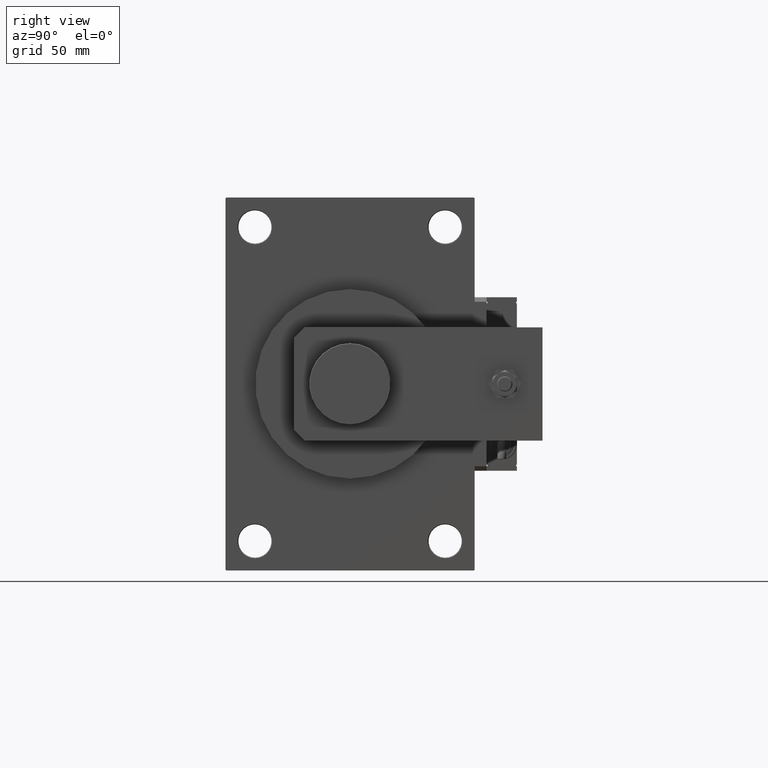
[diagram: clean part render]
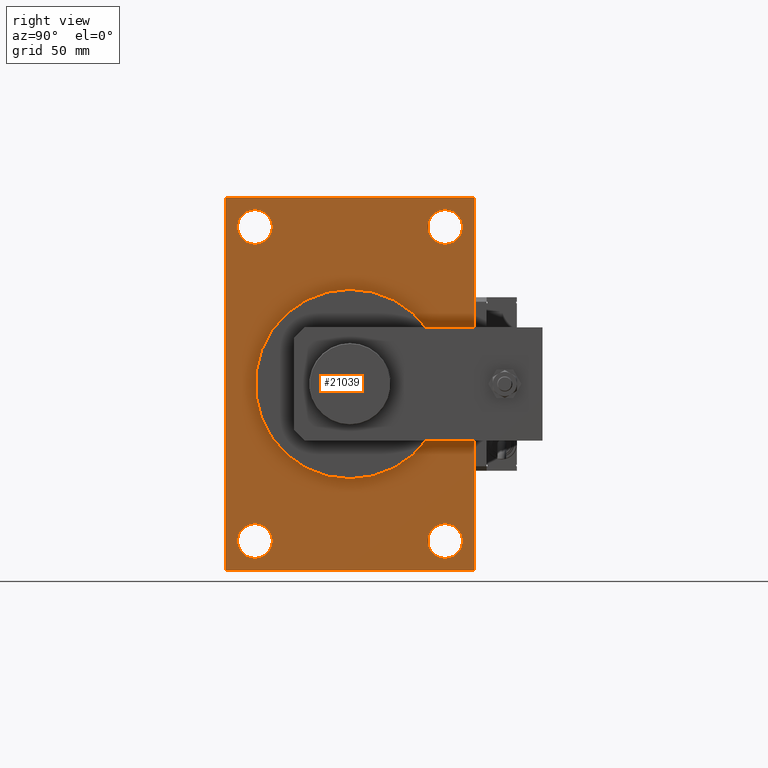
[diagram: same view with one face highlighted and labeled with its STEP entity id]
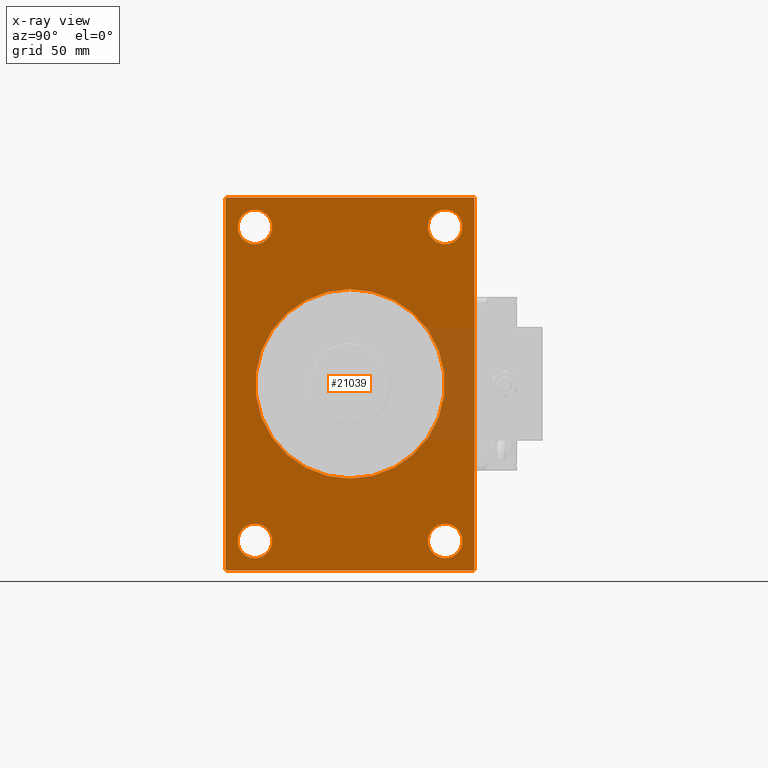
[diagram: x-ray of the same camera — body ghosted, the highlighted face saturated]
A machine part, right view. The second image highlights one B-rep face of the part: STEP entity #21039.
The next image is the same camera in x-ray: the body ghosted, the highlighted face saturated — about 7% of this face is hidden behind the body in this view.
In plain terms, the highlighted planar face has unit normal (-1, 0, 0).
Its self-contained STEP definition (entity closure, byte-faithful):
#116 = VECTOR ( 'NONE', #21401, 1000.000000000000000 ) ;
#139 = EDGE_CURVE ( 'NONE', #49642, #8841, #4700, .T. ) ;
#546 = DIRECTION ( 'NONE',  ( -0.000000000000000000, -0.7071067811865574537, -0.7071067811865376918 ) ) ;
#649 = DIRECTION ( 'NONE',  ( 0.000000000000000000, 0.000000000000000000, 1.000000000000000000 ) ) ;
#669 = CIRCLE ( 'NONE', #19821, 11.49999999999995381 ) ;
#1156 = DIRECTION ( 'NONE',  ( -0.000000000000000000, 0.7071067811865771047, 0.7071067811865180408 ) ) ;
#2020 = CARTESIAN_POINT ( 'NONE',  ( 225.0000000000000000, 62.99999999999998579, -104.0000000000000142 ) ) ;
#2253 = DIRECTION ( 'NONE',  ( -1.000000000000000000, 0.000000000000000000, -0.000000000000000000 ) ) ;
#2828 = DIRECTION ( 'NONE',  ( 0.000000000000000000, 0.000000000000000000, -1.000000000000000000 ) ) ;
#3207 = CARTESIAN_POINT ( 'NONE',  ( 225.0000000000000000, 82.00000000000007105, 123.4999999999999858 ) ) ;
#3242 = FACE_BOUND ( 'NONE', #44071, .T. ) ;
#3382 = VERTEX_POINT ( 'NONE', #41315 ) ;
#4307 = FACE_BOUND ( 'NONE', #24873, .T. ) ;
#4313 = AXIS2_PLACEMENT_3D ( 'NONE', #41348, #37543, #7874 ) ;
#4316 = VECTOR ( 'NONE', #40213, 1000.000000000000000 ) ;
#4549 = VECTOR ( 'NONE', #2828, 1000.000000000000000 ) ;
#4700 = CIRCLE ( 'NONE', #19512, 11.49999999999995381 ) ;
#5257 = EDGE_CURVE ( 'NONE', #8841, #49642, #26604, .T. ) ;
#5276 = LINE ( 'NONE', #13746, #18988 ) ;
#5523 = LINE ( 'NONE', #13443, #17243 ) ;
#5632 = VERTEX_POINT ( 'NONE', #6119 ) ;
#5842 = CARTESIAN_POINT ( 'NONE',  ( 225.0000000000000000, -63.00000000000001421, -92.50000000000005684 ) ) ;
#5874 = VERTEX_POINT ( 'NONE', #33289 ) ;
#6119 = CARTESIAN_POINT ( 'NONE',  ( 225.0000000000000000, 7.684658664649641591E-15, 62.75000000000000000 ) ) ;
#6181 = DIRECTION ( 'NONE',  ( -1.000000000000000000, 0.000000000000000000, -0.000000000000000000 ) ) ;
#6198 = EDGE_CURVE ( 'NONE', #39358, #11201, #29970, .T. ) ;
#6428 = ORIENTED_EDGE ( 'NONE', *, *, #49677, .T. ) ;
#6922 = CIRCLE ( 'NONE', #37340, 11.49999999999995381 ) ;
#7053 = CARTESIAN_POINT ( 'NONE',  ( 225.0000000000000000, 62.99999999999998579, 103.9999999999999858 ) ) ;
#7807 = CARTESIAN_POINT ( 'NONE',  ( 225.0000000000000000, 62.99999999999998579, -115.4999999999999574 ) ) ;
#7874 = DIRECTION ( 'NONE',  ( -0.000000000000000000, 0.000000000000000000, 1.000000000000000000 ) ) ;
#8009 = CIRCLE ( 'NONE', #49772, 11.49999999999995381 ) ;
#8164 = VERTEX_POINT ( 'NONE', #27978 ) ;
#8204 = CIRCLE ( 'NONE', #38671, 11.49999999999995381 ) ;
#8339 = EDGE_LOOP ( 'NONE', ( #48501, #36061 ) ) ;
#8403 = FACE_BOUND ( 'NONE', #8339, .T. ) ;
#8841 = VERTEX_POINT ( 'NONE', #5842 ) ;
#8990 = ORIENTED_EDGE ( 'NONE', *, *, #13007, .T. ) ;
#10109 = CARTESIAN_POINT ( 'NONE',  ( 225.0000000000000000, 0.000000000000000000, -62.75000000000000000 ) ) ;
#10358 = ORIENTED_EDGE ( 'NONE', *, *, #24794, .T. ) ;
#11201 = VERTEX_POINT ( 'NONE', #28016 ) ;
#11272 = DIRECTION ( 'NONE',  ( 0.000000000000000000, 0.7071067811865672237, -0.7071067811865279218 ) ) ;
#12866 = EDGE_CURVE ( 'NONE', #36507, #5874, #5276, .T. ) ;
#13007 = EDGE_CURVE ( 'NONE', #3382, #27152, #669, .T. ) ;
#13022 = ORIENTED_EDGE ( 'NONE', *, *, #28994, .F. ) ;
#13119 = CARTESIAN_POINT ( 'NONE',  ( 225.0000000000000000, -82.50000000000002842, 123.0000000000000853 ) ) ;
#13443 = CARTESIAN_POINT ( 'NONE',  ( 225.0000000000000000, 82.49999999999995737, -123.0000000000000711 ) ) ;
#13593 = AXIS2_PLACEMENT_3D ( 'NONE', #27655, #6181, #19503 ) ;
#13746 = CARTESIAN_POINT ( 'NONE',  ( 225.0000000000000000, 82.49999999999995737, 123.4999999999999858 ) ) ;
#13844 = CARTESIAN_POINT ( 'NONE',  ( 225.0000000000000000, 81.99999999999995737, -123.5000000000000284 ) ) ;
#14047 = DIRECTION ( 'NONE',  ( -1.000000000000000000, 0.000000000000000000, -0.000000000000000000 ) ) ;
#14749 = CARTESIAN_POINT ( 'NONE',  ( 225.0000000000000000, -63.00000000000001421, -115.4999999999999574 ) ) ;
#14816 = DIRECTION ( 'NONE',  ( 0.000000000000000000, 0.000000000000000000, 1.000000000000000000 ) ) ;
#15089 = ORIENTED_EDGE ( 'NONE', *, *, #28280, .T. ) ;
#15199 = VECTOR ( 'NONE', #28260, 1000.000000000000114 ) ;
#15803 = VERTEX_POINT ( 'NONE', #40487 ) ;
#15909 = LINE ( 'NONE', #24077, #4549 ) ;
#16201 = EDGE_CURVE ( 'NONE', #27152, #3382, #6922, .T. ) ;
#16377 = LINE ( 'NONE', #13119, #25295 ) ;
#16415 = CIRCLE ( 'NONE', #53796, 62.75000000000000000 ) ;
#16975 = EDGE_CURVE ( 'NONE', #52526, #29778, #48029, .T. ) ;
#17243 = VECTOR ( 'NONE', #1156, 999.9999999999998863 ) ;
#17299 = EDGE_CURVE ( 'NONE', #8164, #15803, #40469, .T. ) ;
#17537 = DIRECTION ( 'NONE',  ( 0.000000000000000000, 0.000000000000000000, 1.000000000000000000 ) ) ;
#17553 = DIRECTION ( 'NONE',  ( 0.000000000000000000, -1.000000000000000000, -8.410780489584520404E-17 ) ) ;
#18927 = CARTESIAN_POINT ( 'NONE',  ( 225.0000000000000000, -82.50000000000002842, -123.0000000000001705 ) ) ;
#18988 = VECTOR ( 'NONE', #17553, 1000.000000000000000 ) ;
#19124 = ORIENTED_EDGE ( 'NONE', *, *, #31155, .T. ) ;
#19423 = VERTEX_POINT ( 'NONE', #7807 ) ;
#19503 = DIRECTION ( 'NONE',  ( 0.000000000000000000, 0.000000000000000000, 1.000000000000000000 ) ) ;
#19512 = AXIS2_PLACEMENT_3D ( 'NONE', #35765, #48023, #14816 ) ;
#19821 = AXIS2_PLACEMENT_3D ( 'NONE', #37413, #46126, #25434 ) ;
#19994 = ORIENTED_EDGE ( 'NONE', *, *, #16201, .T. ) ;
#20111 = DIRECTION ( 'NONE',  ( 0.000000000000000000, 0.000000000000000000, 1.000000000000000000 ) ) ;
#20164 = AXIS2_PLACEMENT_3D ( 'NONE', #25419, #33868, #17537 ) ;
#20830 = DIRECTION ( 'NONE',  ( -1.000000000000000000, 0.000000000000000000, -0.000000000000000000 ) ) ;
#21039 = ADVANCED_FACE ( 'NONE', ( #45708, #49540, #3242, #8403, #4307, #49002 ), #53098, .F. ) ;
#21401 = DIRECTION ( 'NONE',  ( 0.000000000000000000, -1.000000000000000000, -8.410780489584520404E-17 ) ) ;
#21644 = CARTESIAN_POINT ( 'NONE',  ( 225.0000000000000000, 62.99999999999998579, -104.0000000000000142 ) ) ;
#23670 = DIRECTION ( 'NONE',  ( -1.000000000000000000, 0.000000000000000000, -0.000000000000000000 ) ) ;
#23802 = CARTESIAN_POINT ( 'NONE',  ( 225.0000000000000000, 82.00000000000007105, 123.4999999999999858 ) ) ;
#24077 = CARTESIAN_POINT ( 'NONE',  ( 225.0000000000000000, -82.50000000000002842, 123.4999999999999716 ) ) ;
#24746 = AXIS2_PLACEMENT_3D ( 'NONE', #50657, #45473, #45741 ) ;
#24794 = EDGE_CURVE ( 'NONE', #19423, #31534, #8009, .T. ) ;
#24873 = EDGE_LOOP ( 'NONE', ( #51754, #26070 ) ) ;
#25295 = VECTOR ( 'NONE', #546, 999.9999999999998863 ) ;
#25416 = VERTEX_POINT ( 'NONE', #10109 ) ;
#25419 = CARTESIAN_POINT ( 'NONE',  ( 225.0000000000000000, 0.000000000000000000, 0.000000000000000000 ) ) ;
#25434 = DIRECTION ( 'NONE',  ( 0.000000000000000000, 0.000000000000000000, 1.000000000000000000 ) ) ;
#25678 = CARTESIAN_POINT ( 'NONE',  ( 225.0000000000000000, -63.00000000000001421, 115.4999999999999432 ) ) ;
#25969 = EDGE_CURVE ( 'NONE', #33482, #52526, #15909, .T. ) ;
#26070 = ORIENTED_EDGE ( 'NONE', *, *, #29465, .T. ) ;
#26604 = CIRCLE ( 'NONE', #13593, 11.49999999999995381 ) ;
#27152 = VERTEX_POINT ( 'NONE', #25678 ) ;
#27157 = AXIS2_PLACEMENT_3D ( 'NONE', #21644, #20830, #649 ) ;
#27307 = CARTESIAN_POINT ( 'NONE',  ( 225.0000000000000000, -82.00000000000012790, -123.5000000000000426 ) ) ;
#27655 = CARTESIAN_POINT ( 'NONE',  ( 225.0000000000000000, -63.00000000000001421, -104.0000000000000142 ) ) ;
#27978 = CARTESIAN_POINT ( 'NONE',  ( 225.0000000000000000, 82.49999999999995737, 123.0000000000000995 ) ) ;
#28016 = CARTESIAN_POINT ( 'NONE',  ( 225.0000000000000000, 62.99999999999998579, 115.4999999999999432 ) ) ;
#28157 = ORIENTED_EDGE ( 'NONE', *, *, #25969, .T. ) ;
#28260 = DIRECTION ( 'NONE',  ( 0.000000000000000000, -0.7071067811865474617, 0.7071067811865474617 ) ) ;
#28280 = EDGE_CURVE ( 'NONE', #5874, #33482, #16377, .T. ) ;
#28790 = CARTESIAN_POINT ( 'NONE',  ( 225.0000000000000000, 62.99999999999998579, -92.50000000000005684 ) ) ;
#28994 = EDGE_CURVE ( 'NONE', #31740, #29778, #30116, .T. ) ;
#29367 = EDGE_LOOP ( 'NONE', ( #8990, #19994 ) ) ;
#29465 = EDGE_CURVE ( 'NONE', #5632, #25416, #51485, .T. ) ;
#29778 = VERTEX_POINT ( 'NONE', #47903 ) ;
#29970 = CIRCLE ( 'NONE', #24746, 11.49999999999995381 ) ;
#30116 = LINE ( 'NONE', #42906, #116 ) ;
#30220 = ORIENTED_EDGE ( 'NONE', *, *, #139, .T. ) ;
#31155 = EDGE_CURVE ( 'NONE', #31534, #19423, #50648, .T. ) ;
#31534 = VERTEX_POINT ( 'NONE', #28790 ) ;
#31740 = VERTEX_POINT ( 'NONE', #13844 ) ;
#32661 = DIRECTION ( 'NONE',  ( -1.000000000000000000, 0.000000000000000000, -0.000000000000000000 ) ) ;
#33289 = CARTESIAN_POINT ( 'NONE',  ( 225.0000000000000000, -82.00000000000012790, 123.4999999999999716 ) ) ;
#33482 = VERTEX_POINT ( 'NONE', #44917 ) ;
#33868 = DIRECTION ( 'NONE',  ( -1.000000000000000000, 0.000000000000000000, -0.000000000000000000 ) ) ;
#35765 = CARTESIAN_POINT ( 'NONE',  ( 225.0000000000000000, -63.00000000000001421, -104.0000000000000142 ) ) ;
#35813 = EDGE_CURVE ( 'NONE', #11201, #39358, #8204, .T. ) ;
#35819 = EDGE_CURVE ( 'NONE', #8164, #36507, #49512, .T. ) ;
#36061 = ORIENTED_EDGE ( 'NONE', *, *, #35813, .T. ) ;
#36507 = VERTEX_POINT ( 'NONE', #23802 ) ;
#37340 = AXIS2_PLACEMENT_3D ( 'NONE', #38499, #2253, #43120 ) ;
#37413 = CARTESIAN_POINT ( 'NONE',  ( 225.0000000000000000, -63.00000000000001421, 104.0000000000000000 ) ) ;
#37543 = DIRECTION ( 'NONE',  ( -1.000000000000000000, 0.000000000000000000, -0.000000000000000000 ) ) ;
#38118 = ORIENTED_EDGE ( 'NONE', *, *, #35819, .T. ) ;
#38499 = CARTESIAN_POINT ( 'NONE',  ( 225.0000000000000000, -63.00000000000001421, 104.0000000000000000 ) ) ;
#38671 = AXIS2_PLACEMENT_3D ( 'NONE', #7053, #23670, #20111 ) ;
#39358 = VERTEX_POINT ( 'NONE', #52754 ) ;
#40213 = DIRECTION ( 'NONE',  ( 0.000000000000000000, 0.000000000000000000, -1.000000000000000000 ) ) ;
#40469 = LINE ( 'NONE', #48398, #4316 ) ;
#40487 = CARTESIAN_POINT ( 'NONE',  ( 225.0000000000000000, 82.49999999999995737, -123.0000000000000711 ) ) ;
#41315 = CARTESIAN_POINT ( 'NONE',  ( 225.0000000000000000, -63.00000000000001421, 92.50000000000004263 ) ) ;
#41348 = CARTESIAN_POINT ( 'NONE',  ( 225.0000000000000000, 0.000000000000000000, 0.000000000000000000 ) ) ;
#41461 = EDGE_LOOP ( 'NONE', ( #28157, #51061, #13022, #6428, #46105, #38118, #42124, #15089 ) ) ;
#42124 = ORIENTED_EDGE ( 'NONE', *, *, #12866, .T. ) ;
#42906 = CARTESIAN_POINT ( 'NONE',  ( 225.0000000000000000, 82.49999999999995737, -123.5000000000000284 ) ) ;
#43120 = DIRECTION ( 'NONE',  ( 0.000000000000000000, 0.000000000000000000, 1.000000000000000000 ) ) ;
#43162 = DIRECTION ( 'NONE',  ( 0.000000000000000000, 0.000000000000000000, 1.000000000000000000 ) ) ;
#44071 = EDGE_LOOP ( 'NONE', ( #10358, #19124 ) ) ;
#44917 = CARTESIAN_POINT ( 'NONE',  ( 225.0000000000000000, -82.50000000000002842, 123.0000000000000853 ) ) ;
#44918 = DIRECTION ( 'NONE',  ( 0.000000000000000000, 0.000000000000000000, 1.000000000000000000 ) ) ;
#45473 = DIRECTION ( 'NONE',  ( -1.000000000000000000, 0.000000000000000000, -0.000000000000000000 ) ) ;
#45708 = FACE_BOUND ( 'NONE', #29367, .T. ) ;
#45741 = DIRECTION ( 'NONE',  ( 0.000000000000000000, 0.000000000000000000, 1.000000000000000000 ) ) ;
#46055 = VECTOR ( 'NONE', #11272, 1000.000000000000000 ) ;
#46105 = ORIENTED_EDGE ( 'NONE', *, *, #17299, .F. ) ;
#46126 = DIRECTION ( 'NONE',  ( -1.000000000000000000, 0.000000000000000000, -0.000000000000000000 ) ) ;
#47707 = ORIENTED_EDGE ( 'NONE', *, *, #5257, .T. ) ;
#47903 = CARTESIAN_POINT ( 'NONE',  ( 225.0000000000000000, -82.00000000000012790, -123.5000000000000426 ) ) ;
#48023 = DIRECTION ( 'NONE',  ( -1.000000000000000000, 0.000000000000000000, -0.000000000000000000 ) ) ;
#48029 = LINE ( 'NONE', #27307, #46055 ) ;
#48370 = EDGE_LOOP ( 'NONE', ( #30220, #47707 ) ) ;
#48398 = CARTESIAN_POINT ( 'NONE',  ( 225.0000000000000000, 82.49999999999995737, 123.4999999999999858 ) ) ;
#48501 = ORIENTED_EDGE ( 'NONE', *, *, #6198, .T. ) ;
#49002 = FACE_OUTER_BOUND ( 'NONE', #41461, .T. ) ;
#49512 = LINE ( 'NONE', #3207, #15199 ) ;
#49535 = CARTESIAN_POINT ( 'NONE',  ( 225.0000000000000000, 0.000000000000000000, 0.000000000000000000 ) ) ;
#49540 = FACE_BOUND ( 'NONE', #48370, .T. ) ;
#49642 = VERTEX_POINT ( 'NONE', #14749 ) ;
#49677 = EDGE_CURVE ( 'NONE', #31740, #15803, #5523, .T. ) ;
#49772 = AXIS2_PLACEMENT_3D ( 'NONE', #2020, #14047, #43162 ) ;
#50648 = CIRCLE ( 'NONE', #27157, 11.49999999999995381 ) ;
#50657 = CARTESIAN_POINT ( 'NONE',  ( 225.0000000000000000, 62.99999999999998579, 103.9999999999999858 ) ) ;
#51061 = ORIENTED_EDGE ( 'NONE', *, *, #16975, .T. ) ;
#51084 = EDGE_CURVE ( 'NONE', #25416, #5632, #16415, .T. ) ;
#51485 = CIRCLE ( 'NONE', #20164, 62.75000000000000000 ) ;
#51754 = ORIENTED_EDGE ( 'NONE', *, *, #51084, .T. ) ;
#52526 = VERTEX_POINT ( 'NONE', #18927 ) ;
#52754 = CARTESIAN_POINT ( 'NONE',  ( 225.0000000000000000, 62.99999999999998579, 92.50000000000002842 ) ) ;
#53098 = PLANE ( 'NONE',  #4313 ) ;
#53796 = AXIS2_PLACEMENT_3D ( 'NONE', #49535, #32661, #44918 ) ;